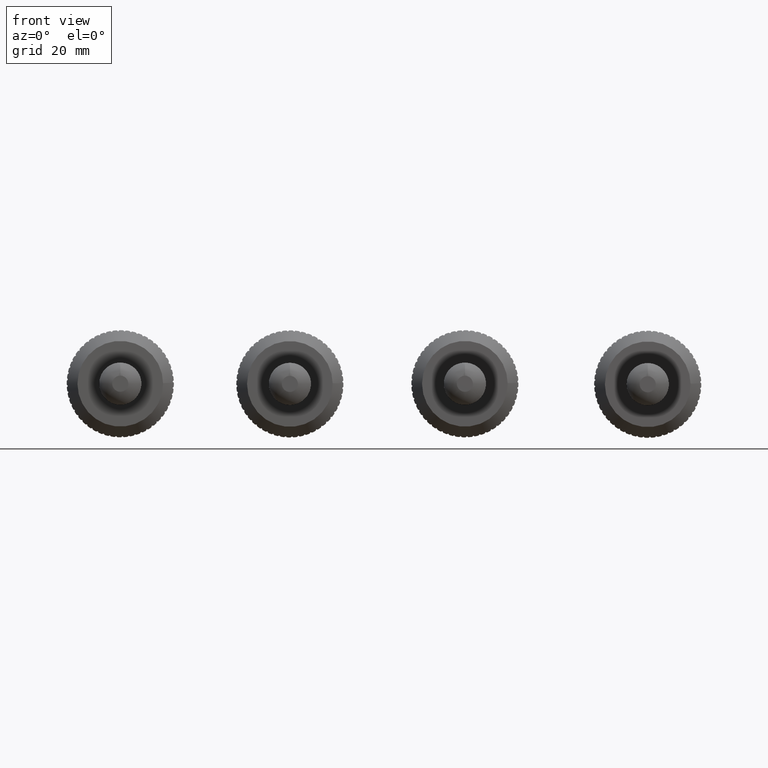
[diagram: clean part render]
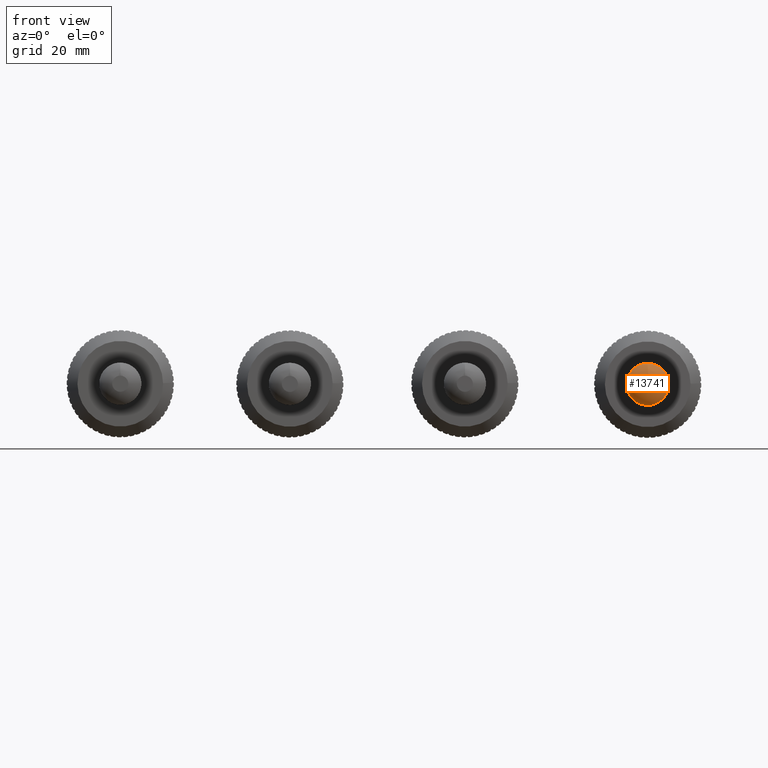
[diagram: same view with one face highlighted and labeled with its STEP entity id]
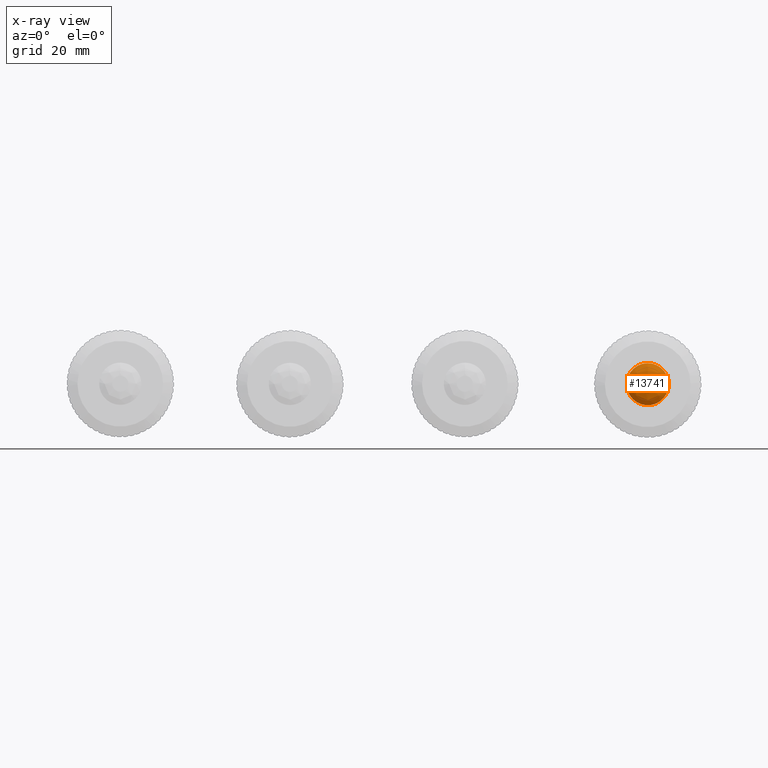
[diagram: x-ray of the same camera — body ghosted, the highlighted face saturated]
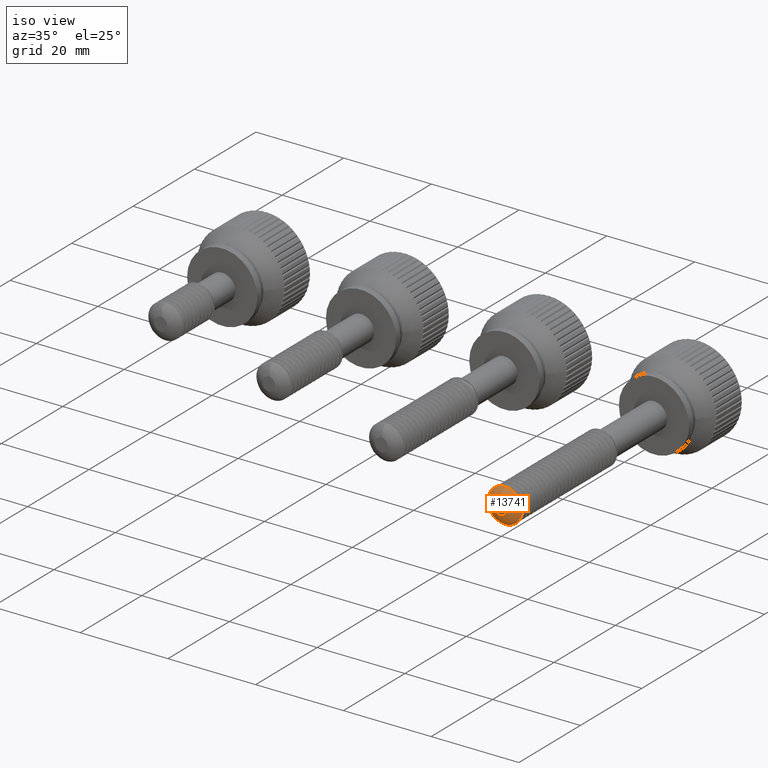
[diagram: same view with one face highlighted and labeled with its STEP entity id]
A machine part, front view. The second image highlights one B-rep face of the part: STEP entity #13741.
The next image is the same camera in x-ray: the body ghosted, the highlighted face saturated — about 0% of this face is hidden behind the body in this view.
A second angle (iso view) of the same face is appended — the face is thin or edge-on in the first view.
In plain terms, the highlighted face is a freeform B-spline surface patch.
Its self-contained STEP definition (entity closure, byte-faithful):
#53=(
BOUNDED_SURFACE()
B_SPLINE_SURFACE(2,2,((#56026,#56027,#56028,#56029,#56030,#56031,#56032,
#56033,#56034),(#56035,#56036,#56037,#56038,#56039,#56040,#56041,#56042,
#56043),(#56044,#56045,#56046,#56047,#56048,#56049,#56050,#56051,#56052)),
 .UNSPECIFIED.,.F.,.T.,.F.)
B_SPLINE_SURFACE_WITH_KNOTS((3,3),(3,2,2,2,3),(0.424521424949046,1.57079632679491),
(-3.14159265358979,-1.5707963267949,0.,1.5707963267949,3.14159265358979),
 .UNSPECIFIED.)
GEOMETRIC_REPRESENTATION_ITEM()
RATIONAL_B_SPLINE_SURFACE(((1.,0.707106781186548,1.,0.707106781186548,1.,
0.707106781186548,1.,0.707106781186548,1.),(0.840203765206477,0.59411377995597,
0.840203765206477,0.59411377995597,0.840203765206477,0.59411377995597,0.840203765206477,
0.59411377995597,0.840203765206477),(1.,0.707106781186548,1.,0.707106781186548,
1.,0.707106781186548,1.,0.707106781186548,1.)))
REPRESENTATION_ITEM('')
SURFACE()
);
#2177=(
BOUNDED_CURVE()
B_SPLINE_CURVE(2,(#56054,#56055,#56056),.UNSPECIFIED.,.F.,.F.)
B_SPLINE_CURVE_WITH_KNOTS((3,3),(0.424521424949046,1.57079632679491),
 .UNSPECIFIED.)
CURVE()
GEOMETRIC_REPRESENTATION_ITEM()
RATIONAL_B_SPLINE_CURVE((1.,0.840203765206477,1.))
REPRESENTATION_ITEM('')
);
#3305=FACE_OUTER_BOUND('',#4019,.T.);
#4019=EDGE_LOOP('',(#12821,#12822,#12823,#12824,#12825,#12826,#12827));
#4381=CIRCLE('',#14617,3.933);
#4384=CIRCLE('',#14622,3.933);
#4385=CIRCLE('',#14623,3.933);
#4496=CIRCLE('',#14896,1.50000000000002);
#4745=B_SPLINE_CURVE_WITH_KNOTS('',3,(#53928,#53929,#53930,#53931),
 .UNSPECIFIED.,.F.,.F.,(4,4),(-0.077738729599813,0.),.UNSPECIFIED.);
#5902=VERTEX_POINT('',#42102);
#5903=VERTEX_POINT('',#42122);
#5958=VERTEX_POINT('',#53186);
#5959=VERTEX_POINT('',#53187);
#6280=VERTEX_POINT('',#56053);
#7923=EDGE_CURVE('',#5903,#5902,#4381,.T.);
#7979=EDGE_CURVE('',#5958,#5959,#4384,.T.);
#7983=EDGE_CURVE('',#5959,#5903,#4385,.T.);
#7984=EDGE_CURVE('',#5902,#5958,#4745,.T.);
#8463=EDGE_CURVE('',#5959,#6280,#2177,.T.);
#8464=EDGE_CURVE('',#6280,#6280,#4496,.T.);
#12821=ORIENTED_EDGE('',*,*,#7979,.T.);
#12822=ORIENTED_EDGE('',*,*,#8463,.T.);
#12823=ORIENTED_EDGE('',*,*,#8464,.F.);
#12824=ORIENTED_EDGE('',*,*,#8463,.F.);
#12825=ORIENTED_EDGE('',*,*,#7983,.T.);
#12826=ORIENTED_EDGE('',*,*,#7923,.T.);
#12827=ORIENTED_EDGE('',*,*,#7984,.T.);
#13741=ADVANCED_FACE('',(#3305),#53,.F.);
#14617=AXIS2_PLACEMENT_3D('',#42123,#17109,#17110);
#14622=AXIS2_PLACEMENT_3D('',#53188,#17119,#17120);
#14623=AXIS2_PLACEMENT_3D('',#53283,#17121,#17122);
#14896=AXIS2_PLACEMENT_3D('',#56057,#17823,#17824);
#17109=DIRECTION('center_axis',(0.,-1.,0.));
#17110=DIRECTION('ref_axis',(1.,0.,0.));
#17119=DIRECTION('center_axis',(0.,-1.,0.));
#17120=DIRECTION('ref_axis',(1.,0.,0.));
#17121=DIRECTION('center_axis',(0.,-1.,0.));
#17122=DIRECTION('ref_axis',(1.,0.,0.));
#17823=DIRECTION('center_axis',(0.,-1.,0.));
#17824=DIRECTION('ref_axis',(1.,0.,0.));
#42102=CARTESIAN_POINT('',(3.83164317812031,-48.4296968877617,0.88712995415785));
#42122=CARTESIAN_POINT('',(3.02286551081902,-48.4297322401386,-2.51610276091834));
#42123=CARTESIAN_POINT('Origin',(4.5102810375397E-16,-48.4297322401385,
-8.95117313604032E-15));
#53186=CARTESIAN_POINT('',(3.81336075452691,-48.4297322401385,0.962688296300491));
#53187=CARTESIAN_POINT('',(-1.83695319189308E-15,-48.4297322401385,3.93300000000001));
#53188=CARTESIAN_POINT('Origin',(4.5102810375397E-16,-48.4297322401385,
-8.95117313604032E-15));
#53283=CARTESIAN_POINT('Origin',(4.5102810375397E-16,-48.4297322401385,
-8.95117313604032E-15));
#53928=CARTESIAN_POINT('Ctrl Pts',(3.83164317812031,-48.4297322401386,0.88712995415785));
#53929=CARTESIAN_POINT('Ctrl Pts',(3.82554903692251,-48.4297322401386,0.912316068205397));
#53930=CARTESIAN_POINT('Ctrl Pts',(3.81945489572471,-48.4297322401386,0.937502182252944));
#53931=CARTESIAN_POINT('Ctrl Pts',(3.81336075452691,-48.4297322401386,0.962688296300491));
#56026=CARTESIAN_POINT('Ctrl Pts',(-1.83695319189308E-15,-48.4297322401385,
3.93300000000001));
#56027=CARTESIAN_POINT('Ctrl Pts',(-3.93300000000004,-48.4297322401385,
3.93300000000001));
#56028=CARTESIAN_POINT('Ctrl Pts',(-3.93300000000004,-48.4297322401385,
-3.06503391932134E-14));
#56029=CARTESIAN_POINT('Ctrl Pts',(-3.93300000000004,-48.4297322401384,
-3.93300000000007));
#56030=CARTESIAN_POINT('Ctrl Pts',(-1.83695319189308E-15,-48.4297322401384,
-3.93300000000007));
#56031=CARTESIAN_POINT('Ctrl Pts',(3.93300000000004,-48.4297322401384,-3.93300000000007));
#56032=CARTESIAN_POINT('Ctrl Pts',(3.93300000000004,-48.4297322401385,-3.06503391932135E-14));
#56033=CARTESIAN_POINT('Ctrl Pts',(3.93300000000004,-48.4297322401385,3.93300000000001));
#56034=CARTESIAN_POINT('Ctrl Pts',(-1.83695319189308E-15,-48.4297322401385,
3.93300000000001));
#56035=CARTESIAN_POINT('Ctrl Pts',(-2.62692995660996E-15,-50.,3.22322849109337));
#56036=CARTESIAN_POINT('Ctrl Pts',(-3.22322849109342,-50.,3.22322849109337));
#56037=CARTESIAN_POINT('Ctrl Pts',(-3.22322849109342,-50.,-4.79610341673134E-14));
#56038=CARTESIAN_POINT('Ctrl Pts',(-3.22322849109342,-50.,-3.22322849109347));
#56039=CARTESIAN_POINT('Ctrl Pts',(-2.62692995660996E-15,-50.,-3.22322849109347));
#56040=CARTESIAN_POINT('Ctrl Pts',(3.22322849109342,-50.,-3.22322849109347));
#56041=CARTESIAN_POINT('Ctrl Pts',(3.22322849109342,-50.,-4.79610341673135E-14));
#56042=CARTESIAN_POINT('Ctrl Pts',(3.22322849109342,-50.,3.22322849109337));
#56043=CARTESIAN_POINT('Ctrl Pts',(-2.62692995660996E-15,-50.,3.22322849109337));
#56044=CARTESIAN_POINT('Ctrl Pts',(-2.62692995660995E-15,-50.,1.49999999999992));
#56045=CARTESIAN_POINT('Ctrl Pts',(-1.49999999999997,-50.,1.49999999999992));
#56046=CARTESIAN_POINT('Ctrl Pts',(-1.49999999999997,-50.,-4.79610341673132E-14));
#56047=CARTESIAN_POINT('Ctrl Pts',(-1.49999999999997,-50.,-1.50000000000002));
#56048=CARTESIAN_POINT('Ctrl Pts',(-2.62692995660995E-15,-50.,-1.50000000000002));
#56049=CARTESIAN_POINT('Ctrl Pts',(1.49999999999997,-50.,-1.50000000000002));
#56050=CARTESIAN_POINT('Ctrl Pts',(1.49999999999997,-50.,-4.79610341673132E-14));
#56051=CARTESIAN_POINT('Ctrl Pts',(1.49999999999997,-50.,1.49999999999992));
#56052=CARTESIAN_POINT('Ctrl Pts',(-2.62692995660995E-15,-50.,1.49999999999992));
#56053=CARTESIAN_POINT('',(-1.83697019872105E-16,-50.,1.50000000000002));
#56054=CARTESIAN_POINT('Ctrl Pts',(-1.83695319189308E-15,-48.4297322401385,
3.93300000000001));
#56055=CARTESIAN_POINT('Ctrl Pts',(-2.62692995660996E-15,-50.0000000000001,
3.22322849109337));
#56056=CARTESIAN_POINT('Ctrl Pts',(-2.62692995660995E-15,-50.,1.49999999999992));
#56057=CARTESIAN_POINT('Origin',(0.,-50.,0.));